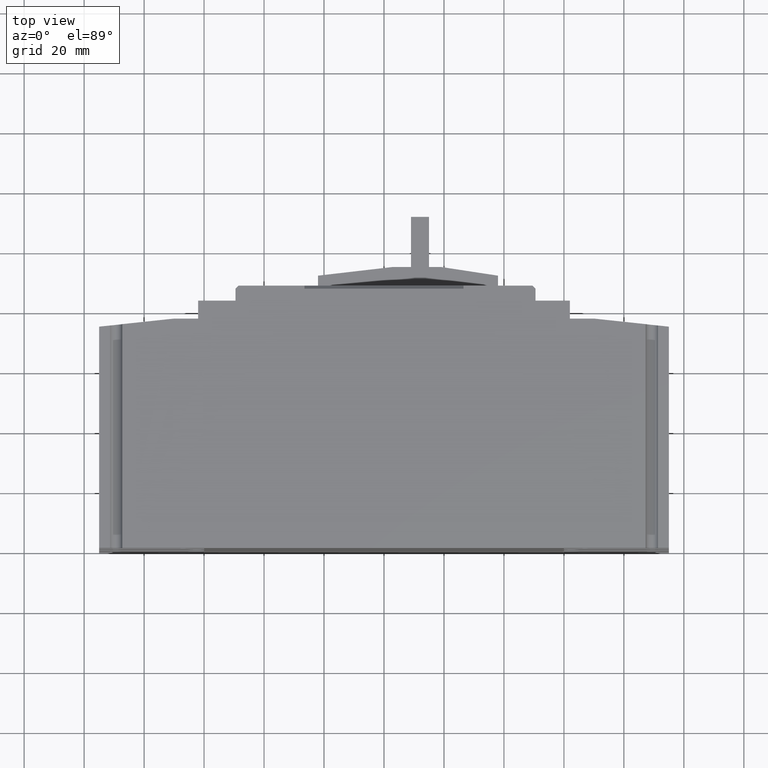
[diagram: clean part render]
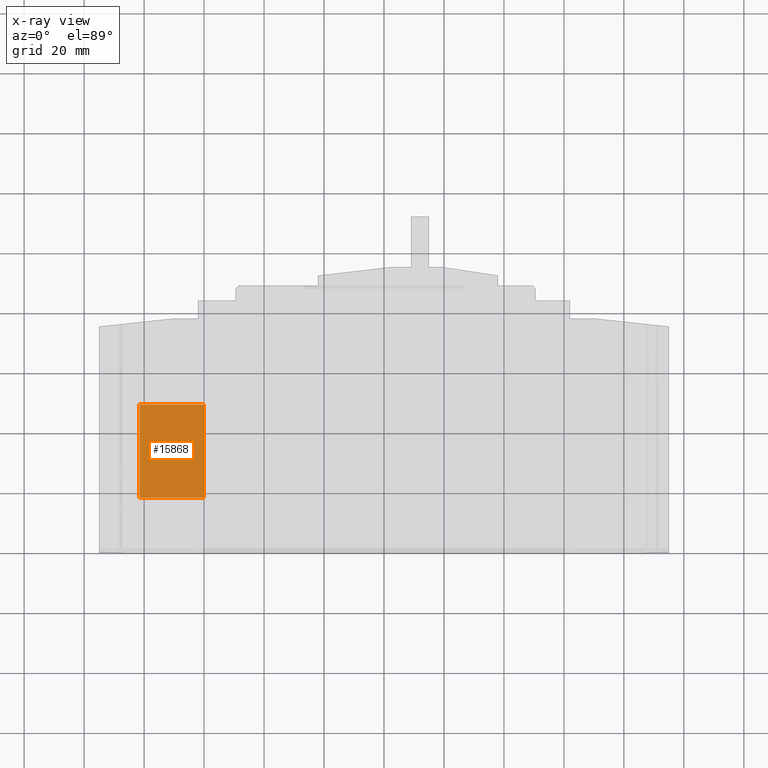
[diagram: x-ray — body ghosted, one internal face saturated and labeled with its STEP entity id]
A machine part, top view, then the same camera in x-ray: the body is ghosted and one INTERNAL B-rep face — a face not visible from any outside direction — is saturated and labeled: STEP entity #15868.
In plain terms, the highlighted planar face has unit normal (0, 0, 1).
Its self-contained STEP definition (entity closure, byte-faithful):
#890 = VERTEX_POINT ( 'NONE', #76056 ) ;
#2350 = LINE ( 'NONE', #37755, #60609 ) ;
#3194 = LINE ( 'NONE', #20882, #22053 ) ;
#5845 = CARTESIAN_POINT ( 'NONE',  ( -3.208661417322834719, 0.7330708661417323357, -0.8879872703195277328 ) ) ;
#10166 = LINE ( 'NONE', #28233, #27467 ) ;
#11035 = FACE_OUTER_BOUND ( 'NONE', #59225, .T. ) ;
#15868 = ADVANCED_FACE ( 'NONE', ( #11035 ), #51488, .T. ) ;
#19570 = DIRECTION ( 'NONE',  ( 0.000000000000000000, -1.000000000000000000, -0.000000000000000000 ) ) ;
#20593 = VECTOR ( 'NONE', #19570, 39.37007874015748143 ) ;
#20882 = CARTESIAN_POINT ( 'NONE',  ( -2.785433070866142113, 0.7086533817761142551, -0.8879872703195277328 ) ) ;
#21004 = EDGE_CURVE ( 'NONE', #33113, #890, #10166, .T. ) ;
#22053 = VECTOR ( 'NONE', #73348, 39.37007874015748143 ) ;
#26220 = DIRECTION ( 'NONE',  ( -0.000000000000000000, 1.000000000000000000, 0.000000000000000000 ) ) ;
#26848 = AXIS2_PLACEMENT_3D ( 'NONE', #56925, #27620, #45703 ) ;
#27467 = VECTOR ( 'NONE', #33657, 39.37007874015748143 ) ;
#27620 = DIRECTION ( 'NONE',  ( 0.000000000000000000, 0.000000000000000000, 1.000000000000000000 ) ) ;
#28233 = CARTESIAN_POINT ( 'NONE',  ( -2.785433070866142113, 1.933858267716535462, -0.8879872703195277328 ) ) ;
#33113 = VERTEX_POINT ( 'NONE', #50504 ) ;
#33657 = DIRECTION ( 'NONE',  ( -1.000000000000000000, -0.000000000000000000, 0.000000000000000000 ) ) ;
#35532 = EDGE_CURVE ( 'NONE', #50659, #33113, #2350, .T. ) ;
#37604 = CARTESIAN_POINT ( 'NONE',  ( -3.208661417322835607, 0.7086533817761142551, -0.8879872703195277328 ) ) ;
#37755 = CARTESIAN_POINT ( 'NONE',  ( -2.362204724409449064, 0.7330708661417323357, -0.8879872703195277328 ) ) ;
#43203 = CARTESIAN_POINT ( 'NONE',  ( -2.362204724409449064, 0.7086533817761142551, -0.8879872703195277328 ) ) ;
#44865 = EDGE_CURVE ( 'NONE', #890, #59359, #58634, .T. ) ;
#45703 = DIRECTION ( 'NONE',  ( 1.000000000000000000, 0.000000000000000000, -0.000000000000000000 ) ) ;
#46926 = ORIENTED_EDGE ( 'NONE', *, *, #21004, .T. ) ;
#48831 = EDGE_CURVE ( 'NONE', #59359, #50659, #3194, .T. ) ;
#50504 = CARTESIAN_POINT ( 'NONE',  ( -2.362204724409449064, 1.933858267716535462, -0.8879872703195277328 ) ) ;
#50659 = VERTEX_POINT ( 'NONE', #43203 ) ;
#51488 = PLANE ( 'NONE',  #26848 ) ;
#55926 = ORIENTED_EDGE ( 'NONE', *, *, #35532, .T. ) ;
#56925 = CARTESIAN_POINT ( 'NONE',  ( -2.785433070866142113, 0.7330708661417323357, -0.8879872703195277328 ) ) ;
#58634 = LINE ( 'NONE', #5845, #20593 ) ;
#59225 = EDGE_LOOP ( 'NONE', ( #55926, #46926, #69993, #66387 ) ) ;
#59359 = VERTEX_POINT ( 'NONE', #37604 ) ;
#60609 = VECTOR ( 'NONE', #26220, 39.37007874015748143 ) ;
#66387 = ORIENTED_EDGE ( 'NONE', *, *, #48831, .T. ) ;
#69993 = ORIENTED_EDGE ( 'NONE', *, *, #44865, .T. ) ;
#73348 = DIRECTION ( 'NONE',  ( 1.000000000000000000, 0.000000000000000000, -0.000000000000000000 ) ) ;
#76056 = CARTESIAN_POINT ( 'NONE',  ( -3.208661417322835607, 1.933858267716535462, -0.8879872703195277328 ) ) ;